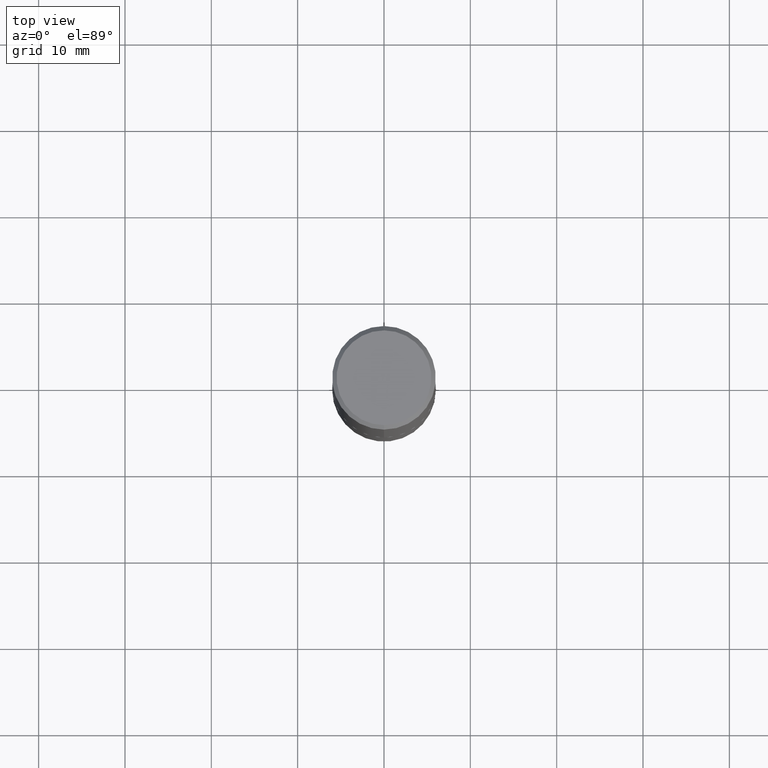
[diagram: clean part render]
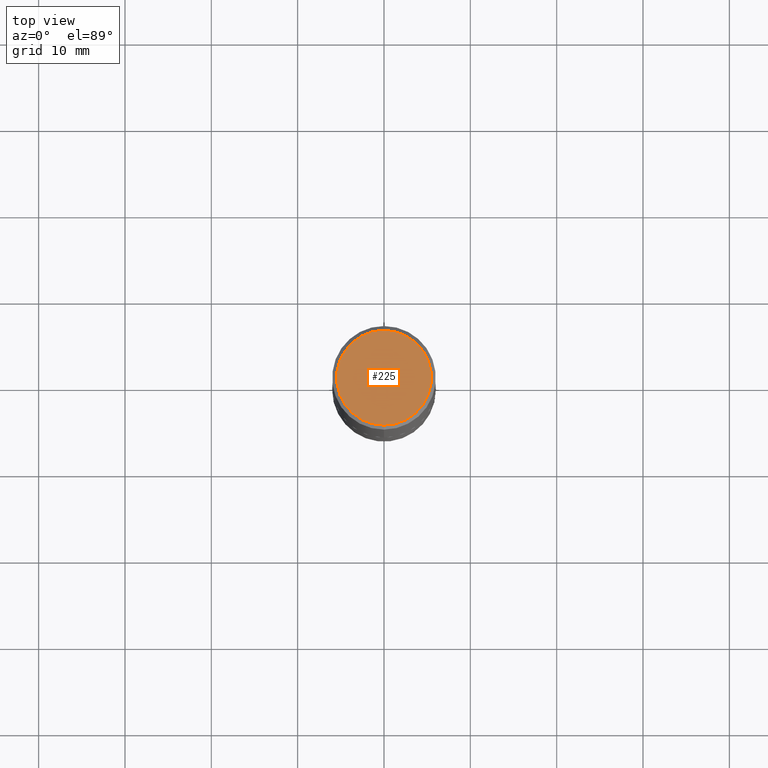
[diagram: same view with one face highlighted and labeled with its STEP entity id]
A machine part, top view. The second image highlights one B-rep face of the part: STEP entity #225.
In plain terms, the highlighted planar face has unit normal (0, -0, -1).
Its self-contained STEP definition (entity closure, byte-faithful):
#2 = EDGE_LOOP ( 'NONE', ( #391, #107 ) ) ;
#24 = EDGE_CURVE ( 'NONE', #255, #192, #169, .T. ) ;
#35 = AXIS2_PLACEMENT_3D ( 'NONE', #181, #273, #276 ) ;
#41 = CARTESIAN_POINT ( 'NONE',  ( -3.651097613894796322E-45, 5.211126655576527214E-31, 1.492765952897207328E-16 ) ) ;
#47 = CARTESIAN_POINT ( 'NONE',  ( -3.651097613894796322E-45, 5.211126655576527214E-31, 1.492765952897207328E-16 ) ) ;
#51 = PLANE ( 'NONE',  #35 ) ;
#71 = EDGE_CURVE ( 'NONE', #192, #255, #293, .T. ) ;
#107 = ORIENTED_EDGE ( 'NONE', *, *, #71, .T. ) ;
#169 = CIRCLE ( 'NONE', #223, 0.2161999999999997535 ) ;
#171 = DIRECTION ( 'NONE',  ( -6.982962677686266711E-15, -1.000000000000000000, 3.490920090629483706E-15 ) ) ;
#181 = CARTESIAN_POINT ( 'NONE',  ( 1.509716530915769140E-15, 0.2161999999999997535, -6.800986259492332687E-16 ) ) ;
#192 = VERTEX_POINT ( 'NONE', #370 ) ;
#217 = DIRECTION ( 'NONE',  ( -6.982962677686266711E-15, -1.000000000000000000, 3.490920090629483706E-15 ) ) ;
#223 = AXIS2_PLACEMENT_3D ( 'NONE', #41, #363, #171 ) ;
#225 = ADVANCED_FACE ( 'NONE', ( #343 ), #51, .F. ) ;
#244 = DIRECTION ( 'NONE',  ( -2.445860723718028373E-29, 3.490920090629483706E-15, 1.000000000000000000 ) ) ;
#255 = VERTEX_POINT ( 'NONE', #388 ) ;
#273 = DIRECTION ( 'NONE',  ( 2.445860723718027813E-29, -3.490920090629484100E-15, -1.000000000000000000 ) ) ;
#276 = DIRECTION ( 'NONE',  ( 6.982962677686265922E-15, 1.000000000000000000, -3.490920090629484100E-15 ) ) ;
#293 = CIRCLE ( 'NONE', #379, 0.2161999999999997535 ) ;
#343 = FACE_OUTER_BOUND ( 'NONE', #2, .T. ) ;
#363 = DIRECTION ( 'NONE',  ( -2.445860723718028373E-29, 3.490920090629483706E-15, 1.000000000000000000 ) ) ;
#370 = CARTESIAN_POINT ( 'NONE',  ( -1.551844647095918761E-15, -0.2161999999999997535, 9.040135188838143063E-16 ) ) ;
#379 = AXIS2_PLACEMENT_3D ( 'NONE', #47, #244, #217 ) ;
#388 = CARTESIAN_POINT ( 'NONE',  ( 1.579546157692632438E-15, 0.2161999999999997535, -6.054603283043727914E-16 ) ) ;
#391 = ORIENTED_EDGE ( 'NONE', *, *, #24, .T. ) ;